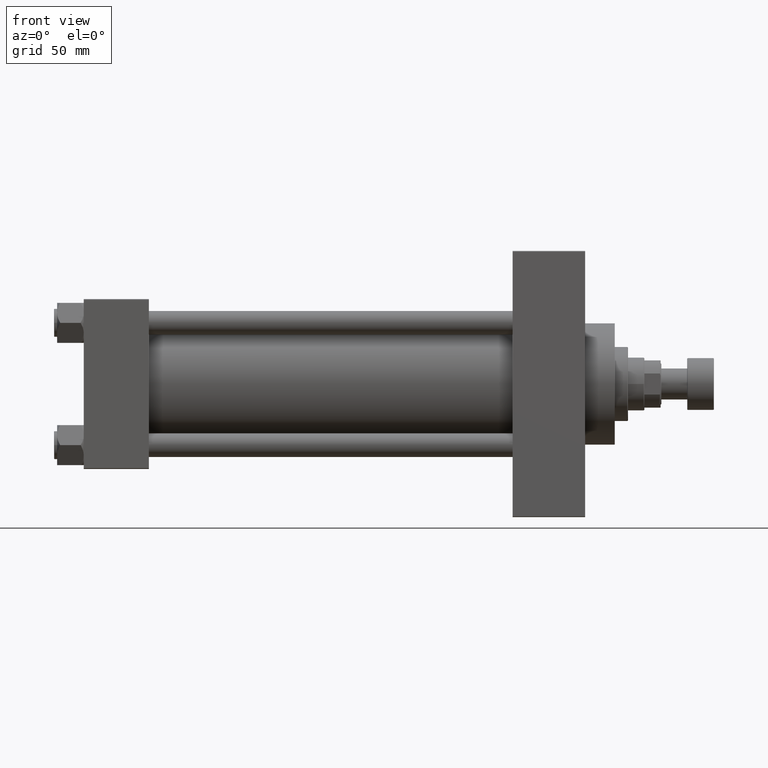
[diagram: clean part render]
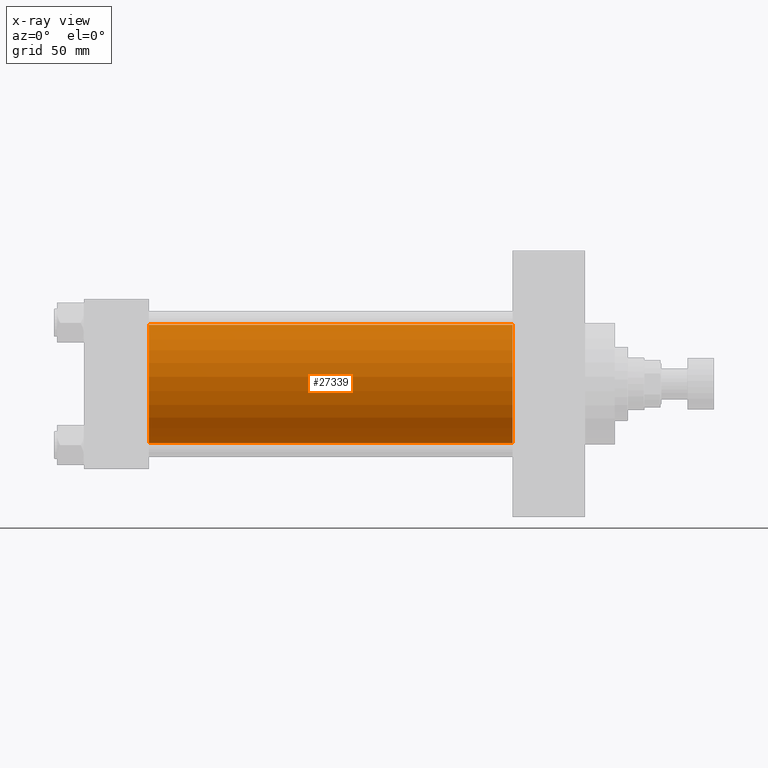
[diagram: x-ray — body ghosted, one internal face saturated and labeled with its STEP entity id]
A machine part, front view, then the same camera in x-ray: the body is ghosted and one INTERNAL B-rep face — a face not visible from any outside direction — is saturated and labeled: STEP entity #27339.
In plain terms, the highlighted cylindrical surface (partial cylindrical patch) has radius 40 mm, axis along (-1, -0, -0).
Its self-contained STEP definition (entity closure, byte-faithful):
#896 = VERTEX_POINT ( 'NONE', #10269 ) ;
#2301 = DIRECTION ( 'NONE',  ( 0.000000000000000000, 0.000000000000000000, -1.000000000000000000 ) ) ;
#2620 = CYLINDRICAL_SURFACE ( 'NONE', #8661, 40.00000000000000000 ) ;
#3371 = VECTOR ( 'NONE', #25737, 1000.000000000000000 ) ;
#6127 = CARTESIAN_POINT ( 'NONE',  ( 290.0000000000000000, -2.602085213965210642E-15, 40.00000000000000000 ) ) ;
#6279 = FACE_OUTER_BOUND ( 'NONE', #28440, .T. ) ;
#6358 = EDGE_CURVE ( 'NONE', #45044, #44939, #34873, .T. ) ;
#7678 = VECTOR ( 'NONE', #8854, 1000.000000000000000 ) ;
#8334 = CARTESIAN_POINT ( 'NONE',  ( 44.00000000000000000, -2.602085213965210642E-15, 40.00000000000000000 ) ) ;
#8661 = AXIS2_PLACEMENT_3D ( 'NONE', #13801, #43514, #10165 ) ;
#8854 = DIRECTION ( 'NONE',  ( -1.000000000000000000, -0.000000000000000000, -0.000000000000000000 ) ) ;
#10165 = DIRECTION ( 'NONE',  ( 0.000000000000000000, 0.000000000000000000, 1.000000000000000000 ) ) ;
#10269 = CARTESIAN_POINT ( 'NONE',  ( 44.00000000000000000, 2.296501982624201990E-15, -40.00000000000000000 ) ) ;
#10359 = ORIENTED_EDGE ( 'NONE', *, *, #6358, .F. ) ;
#12985 = CIRCLE ( 'NONE', #40206, 40.00000000000000000 ) ;
#13801 = CARTESIAN_POINT ( 'NONE',  ( 290.0000000000000000, -2.602085213965210642E-15, 0.000000000000000000 ) ) ;
#17623 = CARTESIAN_POINT ( 'NONE',  ( 44.00000000000000000, -2.602085213965210642E-15, 0.000000000000000000 ) ) ;
#18476 = ORIENTED_EDGE ( 'NONE', *, *, #36130, .T. ) ;
#20146 = CIRCLE ( 'NONE', #26393, 40.00000000000000000 ) ;
#23492 = EDGE_CURVE ( 'NONE', #45044, #45768, #20146, .T. ) ;
#25737 = DIRECTION ( 'NONE',  ( -1.000000000000000000, -0.000000000000000000, -0.000000000000000000 ) ) ;
#26393 = AXIS2_PLACEMENT_3D ( 'NONE', #43443, #47087, #46851 ) ;
#27339 = ADVANCED_FACE ( 'NONE', ( #6279 ), #2620, .F. ) ;
#28440 = EDGE_LOOP ( 'NONE', ( #39877, #18476, #37458, #10359 ) ) ;
#29387 = CARTESIAN_POINT ( 'NONE',  ( 290.0000000000000000, 2.296501982624201990E-15, -40.00000000000000000 ) ) ;
#32236 = DIRECTION ( 'NONE',  ( 1.000000000000000000, 0.000000000000000000, 0.000000000000000000 ) ) ;
#34873 = LINE ( 'NONE', #45834, #7678 ) ;
#36130 = EDGE_CURVE ( 'NONE', #45768, #896, #47880, .T. ) ;
#37458 = ORIENTED_EDGE ( 'NONE', *, *, #44330, .F. ) ;
#39877 = ORIENTED_EDGE ( 'NONE', *, *, #23492, .T. ) ;
#40206 = AXIS2_PLACEMENT_3D ( 'NONE', #17623, #32236, #2301 ) ;
#43443 = CARTESIAN_POINT ( 'NONE',  ( 290.0000000000000000, -2.602085213965210642E-15, 0.000000000000000000 ) ) ;
#43514 = DIRECTION ( 'NONE',  ( -1.000000000000000000, -0.000000000000000000, -0.000000000000000000 ) ) ;
#44330 = EDGE_CURVE ( 'NONE', #44939, #896, #12985, .T. ) ;
#44939 = VERTEX_POINT ( 'NONE', #8334 ) ;
#45044 = VERTEX_POINT ( 'NONE', #6127 ) ;
#45768 = VERTEX_POINT ( 'NONE', #47485 ) ;
#45834 = CARTESIAN_POINT ( 'NONE',  ( 290.0000000000000000, -2.602085213965210642E-15, 40.00000000000000000 ) ) ;
#46851 = DIRECTION ( 'NONE',  ( 0.000000000000000000, 0.000000000000000000, -1.000000000000000000 ) ) ;
#47087 = DIRECTION ( 'NONE',  ( 1.000000000000000000, 0.000000000000000000, 0.000000000000000000 ) ) ;
#47485 = CARTESIAN_POINT ( 'NONE',  ( 290.0000000000000000, 2.296501982624201990E-15, -40.00000000000000000 ) ) ;
#47880 = LINE ( 'NONE', #29387, #3371 ) ;